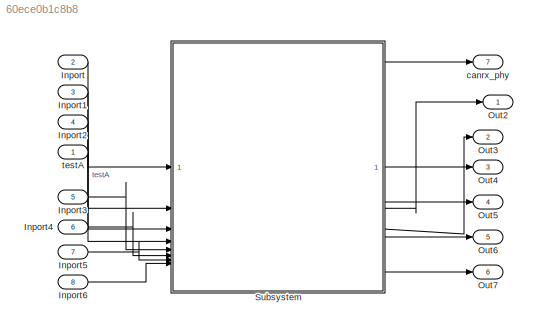
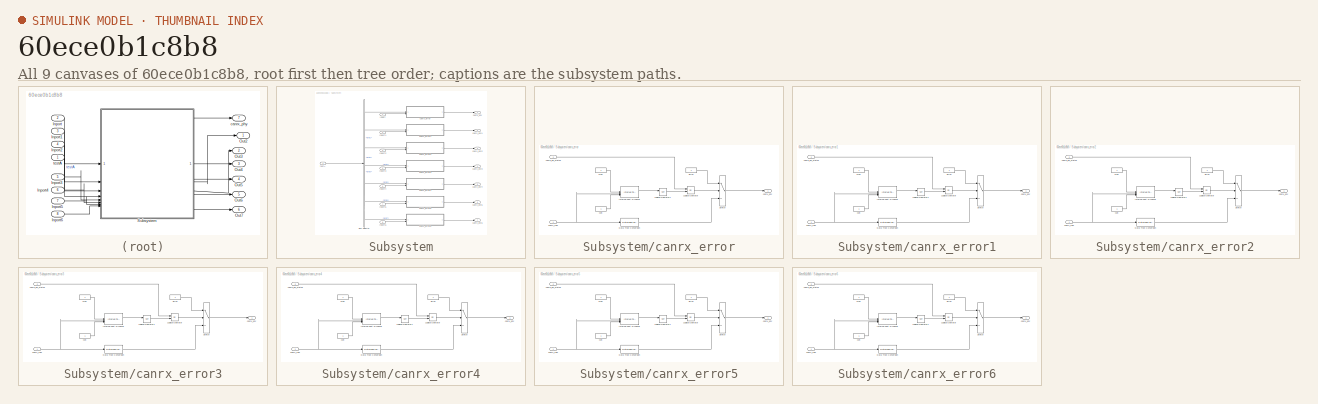
[diagram: thumbnail index - all 9 canvases of the model, root first then tree order]
MODEL slx_60ece0b1c8b8
KIND model
CONFIG AbsTol = auto
CONFIG EnableMultiTasking = off
CONFIG FixedStep = auto
CONFIG MaxStep = auto
CONFIG MinStep = auto
CONFIG RelTol = 1e-3
CONFIG SampleTimeConstraint = Unconstrained
CONFIG SolverName = FixedStepDiscrete
CONFIG StartTime = 0.0
CONFIG StopTime = 10.0
BLOCK [Inport] Inport
  Port = 2
BLOCK [Inport] Inport1
  Port = 3
BLOCK [Inport] Inport2
  Port = 4
BLOCK [Inport] Inport3
  Port = 5
BLOCK [Inport] Inport4
  Port = 6
BLOCK [Inport] Inport5
  Port = 7
BLOCK [Inport] Inport6
  Port = 8
BLOCK [Outport] Out2
  MustResolveToSignalObject = on
  SignalName = Out2
BLOCK [Outport] Out3
  MustResolveToSignalObject = on
  Port = 2
  SignalName = Out3
BLOCK [Outport] Out4
  MustResolveToSignalObject = on
  Port = 3
  SignalName = Out4
BLOCK [Outport] Out5
  MustResolveToSignalObject = on
  Port = 4
  SignalName = Out5
BLOCK [Outport] Out6
  MustResolveToSignalObject = on
  Port = 5
  SignalName = Out6
BLOCK [Outport] Out7
  MustResolveToSignalObject = on
  Port = 6
  SignalName = Out7
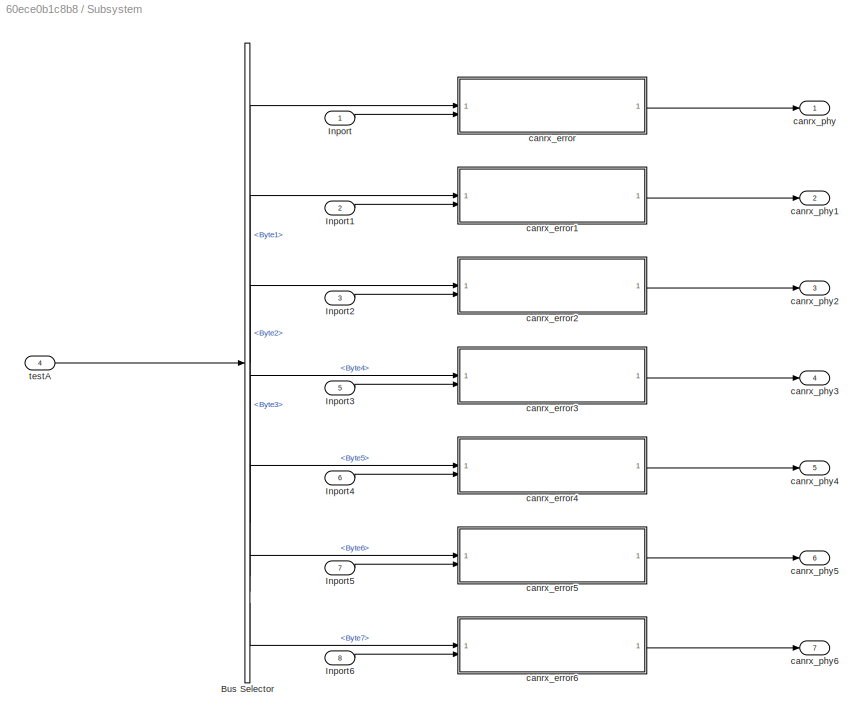
BLOCK [SubSystem] Subsystem
BLOCK [BusSelector] Subsystem/Bus Selector
  OutputSignals = Byte1,Byte2,Byte3,Byte4,Byte5,Byte6,Byte7
BLOCK [Inport] Subsystem/Inport
BLOCK [Inport] Subsystem/Inport1
  Port = 2
BLOCK [Inport] Subsystem/Inport2
  Port = 3
BLOCK [Inport] Subsystem/Inport3
  Port = 5
BLOCK [Inport] Subsystem/Inport4
  Port = 6
BLOCK [Inport] Subsystem/Inport5
  Port = 7
BLOCK [Inport] Subsystem/Inport6
  Port = 8
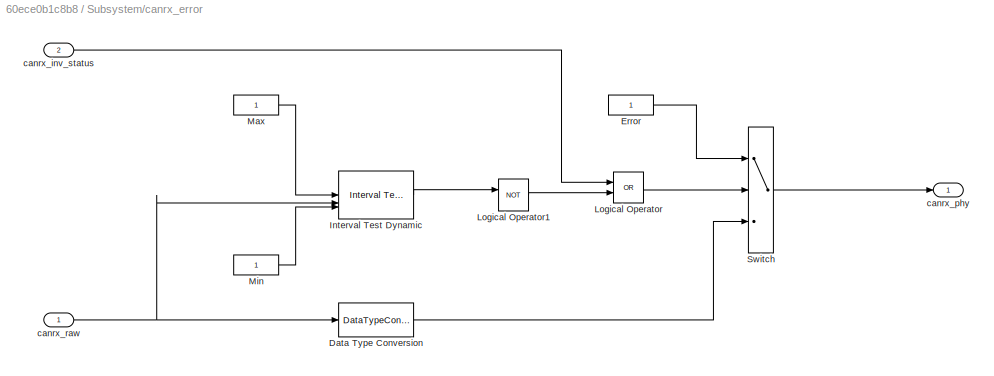
BLOCK [SubSystem] Subsystem/canrx_error
  RTWSystemCode = Reusable function
  TreatAsAtomicUnit = on
BLOCK [DataTypeConversion] Subsystem/canrx_error/Data Type Conversion
  RndMeth = Floor
  SaturateOnIntegerOverflow = off
BLOCK [Constant] Subsystem/canrx_error/Error
  OutDataTypeStr = Inherit: Inherit via back propagation
BLOCK [Reference] Subsystem/canrx_error/Interval Test Dynamic  REF=simulink/Logic and Bit
Operations/Interval Test
Dynamic
  SourceBlock = simulink/Logic and Bit\nOperations/Interval Test\nDynamic
  SourceType = Interval Test Dynamic
BLOCK [Logic] Subsystem/canrx_error/Logical Operator
  AllPortsSameDT = off
  Operator = OR
  OutDataTypeStr = boolean
BLOCK [Logic] Subsystem/canrx_error/Logical Operator1
  AllPortsSameDT = off
  Operator = NOT
  OutDataTypeStr = boolean
BLOCK [Constant] Subsystem/canrx_error/Max
  OutDataTypeStr = Inherit: Inherit via back propagation
BLOCK [Constant] Subsystem/canrx_error/Min
  OutDataTypeStr = Inherit: Inherit via back propagation
BLOCK [Switch] Subsystem/canrx_error/Switch
  Criteria = u2 > Threshold
  InputSameDT = off
  SaturateOnIntegerOverflow = off
BLOCK [Inport] Subsystem/canrx_error/canrx_inv_status
  Port = 2
BLOCK [Outport] Subsystem/canrx_error/canrx_phy
BLOCK [Inport] Subsystem/canrx_error/canrx_raw
BLOCK [SubSystem] Subsystem/canrx_error1
  RTWSystemCode = Reusable function
  TreatAsAtomicUnit = on
BLOCK [DataTypeConversion] Subsystem/canrx_error1/Data Type Conversion
  RndMeth = Floor
  SaturateOnIntegerOverflow = off
BLOCK [Constant] Subsystem/canrx_error1/Error
  OutDataTypeStr = Inherit: Inherit via back propagation
BLOCK [Reference] Subsystem/canrx_error1/Interval Test Dynamic  REF=simulink/Logic and Bit
Operations/Interval Test
Dynamic
  SourceBlock = simulink/Logic and Bit\nOperations/Interval Test\nDynamic
  SourceType = Interval Test Dynamic
BLOCK [Logic] Subsystem/canrx_error1/Logical Operator
  AllPortsSameDT = off
  Operator = OR
  OutDataTypeStr = boolean
BLOCK [Logic] Subsystem/canrx_error1/Logical Operator1
  AllPortsSameDT = off
  Operator = NOT
  OutDataTypeStr = boolean
BLOCK [Constant] Subsystem/canrx_error1/Max
  OutDataTypeStr = Inherit: Inherit via back propagation
BLOCK [Constant] Subsystem/canrx_error1/Min
  OutDataTypeStr = Inherit: Inherit via back propagation
BLOCK [Switch] Subsystem/canrx_error1/Switch
  Criteria = u2 > Threshold
  InputSameDT = off
  SaturateOnIntegerOverflow = off
BLOCK [Inport] Subsystem/canrx_error1/canrx_inv_status
  Port = 2
BLOCK [Outport] Subsystem/canrx_error1/canrx_phy
BLOCK [Inport] Subsystem/canrx_error1/canrx_raw
BLOCK [SubSystem] Subsystem/canrx_error2
  RTWSystemCode = Reusable function
  TreatAsAtomicUnit = on
BLOCK [DataTypeConversion] Subsystem/canrx_error2/Data Type Conversion
  RndMeth = Floor
  SaturateOnIntegerOverflow = off
BLOCK [Constant] Subsystem/canrx_error2/Error
  OutDataTypeStr = Inherit: Inherit via back propagation
BLOCK [Reference] Subsystem/canrx_error2/Interval Test Dynamic  REF=simulink/Logic and Bit
Operations/Interval Test
Dynamic
  SourceBlock = simulink/Logic and Bit\nOperations/Interval Test\nDynamic
  SourceType = Interval Test Dynamic
BLOCK [Logic] Subsystem/canrx_error2/Logical Operator
  AllPortsSameDT = off
  Operator = OR
  OutDataTypeStr = boolean
BLOCK [Logic] Subsystem/canrx_error2/Logical Operator1
  AllPortsSameDT = off
  Operator = NOT
  OutDataTypeStr = boolean
BLOCK [Constant] Subsystem/canrx_error2/Max
  OutDataTypeStr = Inherit: Inherit via back propagation
BLOCK [Constant] Subsystem/canrx_error2/Min
  OutDataTypeStr = Inherit: Inherit via back propagation
BLOCK [Switch] Subsystem/canrx_error2/Switch
  Criteria = u2 > Threshold
  InputSameDT = off
  SaturateOnIntegerOverflow = off
BLOCK [Inport] Subsystem/canrx_error2/canrx_inv_status
  Port = 2
BLOCK [Outport] Subsystem/canrx_error2/canrx_phy
BLOCK [Inport] Subsystem/canrx_error2/canrx_raw
BLOCK [SubSystem] Subsystem/canrx_error3
  RTWSystemCode = Reusable function
  TreatAsAtomicUnit = on
BLOCK [DataTypeConversion] Subsystem/canrx_error3/Data Type Conversion
  RndMeth = Floor
  SaturateOnIntegerOverflow = off
BLOCK [Constant] Subsystem/canrx_error3/Error
  OutDataTypeStr = Inherit: Inherit via back propagation
BLOCK [Reference] Subsystem/canrx_error3/Interval Test Dynamic  REF=simulink/Logic and Bit
Operations/Interval Test
Dynamic
  SourceBlock = simulink/Logic and Bit\nOperations/Interval Test\nDynamic
  SourceType = Interval Test Dynamic
BLOCK [Logic] Subsystem/canrx_error3/Logical Operator
  AllPortsSameDT = off
  Operator = OR
  OutDataTypeStr = boolean
BLOCK [Logic] Subsystem/canrx_error3/Logical Operator1
  AllPortsSameDT = off
  Operator = NOT
  OutDataTypeStr = boolean
BLOCK [Constant] Subsystem/canrx_error3/Max
  OutDataTypeStr = Inherit: Inherit via back propagation
BLOCK [Constant] Subsystem/canrx_error3/Min
  OutDataTypeStr = Inherit: Inherit via back propagation
BLOCK [Switch] Subsystem/canrx_error3/Switch
  Criteria = u2 > Threshold
  InputSameDT = off
  SaturateOnIntegerOverflow = off
BLOCK [Inport] Subsystem/canrx_error3/canrx_inv_status
  Port = 2
BLOCK [Outport] Subsystem/canrx_error3/canrx_phy
BLOCK [Inport] Subsystem/canrx_error3/canrx_raw
BLOCK [SubSystem] Subsystem/canrx_error4
  RTWSystemCode = Reusable function
  TreatAsAtomicUnit = on
BLOCK [DataTypeConversion] Subsystem/canrx_error4/Data Type Conversion
  RndMeth = Floor
  SaturateOnIntegerOverflow = off
BLOCK [Constant] Subsystem/canrx_error4/Error
  OutDataTypeStr = Inherit: Inherit via back propagation
BLOCK [Reference] Subsystem/canrx_error4/Interval Test Dynamic  REF=simulink/Logic and Bit
Operations/Interval Test
Dynamic
  SourceBlock = simulink/Logic and Bit\nOperations/Interval Test\nDynamic
  SourceType = Interval Test Dynamic
BLOCK [Logic] Subsystem/canrx_error4/Logical Operator
  AllPortsSameDT = off
  Operator = OR
  OutDataTypeStr = boolean
BLOCK [Logic] Subsystem/canrx_error4/Logical Operator1
  AllPortsSameDT = off
  Operator = NOT
  OutDataTypeStr = boolean
BLOCK [Constant] Subsystem/canrx_error4/Max
  OutDataTypeStr = Inherit: Inherit via back propagation
BLOCK [Constant] Subsystem/canrx_error4/Min
  OutDataTypeStr = Inherit: Inherit via back propagation
BLOCK [Switch] Subsystem/canrx_error4/Switch
  Criteria = u2 > Threshold
  InputSameDT = off
  SaturateOnIntegerOverflow = off
BLOCK [Inport] Subsystem/canrx_error4/canrx_inv_status
  Port = 2
BLOCK [Outport] Subsystem/canrx_error4/canrx_phy
BLOCK [Inport] Subsystem/canrx_error4/canrx_raw
BLOCK [SubSystem] Subsystem/canrx_error5
  RTWSystemCode = Reusable function
  TreatAsAtomicUnit = on
BLOCK [DataTypeConversion] Subsystem/canrx_error5/Data Type Conversion
  RndMeth = Floor
  SaturateOnIntegerOverflow = off
BLOCK [Constant] Subsystem/canrx_error5/Error
  OutDataTypeStr = Inherit: Inherit via back propagation
BLOCK [Reference] Subsystem/canrx_error5/Interval Test Dynamic  REF=simulink/Logic and Bit
Operations/Interval Test
Dynamic
  SourceBlock = simulink/Logic and Bit\nOperations/Interval Test\nDynamic
  SourceType = Interval Test Dynamic
BLOCK [Logic] Subsystem/canrx_error5/Logical Operator
  AllPortsSameDT = off
  Operator = OR
  OutDataTypeStr = boolean
BLOCK [Logic] Subsystem/canrx_error5/Logical Operator1
  AllPortsSameDT = off
  Operator = NOT
  OutDataTypeStr = boolean
BLOCK [Constant] Subsystem/canrx_error5/Max
  OutDataTypeStr = Inherit: Inherit via back propagation
BLOCK [Constant] Subsystem/canrx_error5/Min
  OutDataTypeStr = Inherit: Inherit via back propagation
BLOCK [Switch] Subsystem/canrx_error5/Switch
  Criteria = u2 > Threshold
  InputSameDT = off
  SaturateOnIntegerOverflow = off
BLOCK [Inport] Subsystem/canrx_error5/canrx_inv_status
  Port = 2
BLOCK [Outport] Subsystem/canrx_error5/canrx_phy
BLOCK [Inport] Subsystem/canrx_error5/canrx_raw
BLOCK [SubSystem] Subsystem/canrx_error6
  RTWSystemCode = Reusable function
  TreatAsAtomicUnit = on
BLOCK [DataTypeConversion] Subsystem/canrx_error6/Data Type Conversion
  RndMeth = Floor
  SaturateOnIntegerOverflow = off
BLOCK [Constant] Subsystem/canrx_error6/Error
  OutDataTypeStr = Inherit: Inherit via back propagation
BLOCK [Reference] Subsystem/canrx_error6/Interval Test Dynamic  REF=simulink/Logic and Bit
Operations/Interval Test
Dynamic
  SourceBlock = simulink/Logic and Bit\nOperations/Interval Test\nDynamic
  SourceType = Interval Test Dynamic
BLOCK [Logic] Subsystem/canrx_error6/Logical Operator
  AllPortsSameDT = off
  Operator = OR
  OutDataTypeStr = boolean
BLOCK [Logic] Subsystem/canrx_error6/Logical Operator1
  AllPortsSameDT = off
  Operator = NOT
  OutDataTypeStr = boolean
BLOCK [Constant] Subsystem/canrx_error6/Max
  OutDataTypeStr = Inherit: Inherit via back propagation
BLOCK [Constant] Subsystem/canrx_error6/Min
  OutDataTypeStr = Inherit: Inherit via back propagation
BLOCK [Switch] Subsystem/canrx_error6/Switch
  Criteria = u2 > Threshold
  InputSameDT = off
  SaturateOnIntegerOverflow = off
BLOCK [Inport] Subsystem/canrx_error6/canrx_inv_status
  Port = 2
BLOCK [Outport] Subsystem/canrx_error6/canrx_phy
BLOCK [Inport] Subsystem/canrx_error6/canrx_raw
BLOCK [Outport] Subsystem/canrx_phy
BLOCK [Outport] Subsystem/canrx_phy1
  Port = 2
BLOCK [Outport] Subsystem/canrx_phy2
  Port = 3
BLOCK [Outport] Subsystem/canrx_phy3
  Port = 4
BLOCK [Outport] Subsystem/canrx_phy4
  Port = 5
BLOCK [Outport] Subsystem/canrx_phy5
  Port = 6
BLOCK [Outport] Subsystem/canrx_phy6
  Port = 7
BLOCK [Inport] Subsystem/testA
  Port = 4
BLOCK [Outport] canrx_phy
  MustResolveToSignalObject = on
  Port = 7
  SignalName = Out1
BLOCK [Inport] testA
  OutDataTypeStr = Bus: test
LINE Inport1:1 -> Subsystem:2
LINE Inport2:1 -> Subsystem:3
LINE Inport3:1 -> Subsystem:5
LINE Inport4:1 -> Subsystem:6
LINE Inport5:1 -> Subsystem:7
LINE Inport6:1 -> Subsystem:8
LINE Inport:1 -> Subsystem:1
LINE Subsystem/Bus Selector:1 -> Subsystem/canrx_error:1
LINE Subsystem/Bus Selector:2 -> Subsystem/canrx_error1:1
LINE Subsystem/Bus Selector:3 -> Subsystem/canrx_error2:1
LINE Subsystem/Bus Selector:4 -> Subsystem/canrx_error3:1
LINE Subsystem/Bus Selector:5 -> Subsystem/canrx_error4:1
LINE Subsystem/Bus Selector:6 -> Subsystem/canrx_error5:1
LINE Subsystem/Bus Selector:7 -> Subsystem/canrx_error6:1
LINE Subsystem/Inport1:1 -> Subsystem/canrx_error1:2
LINE Subsystem/Inport2:1 -> Subsystem/canrx_error2:2
LINE Subsystem/Inport3:1 -> Subsystem/canrx_error3:2
LINE Subsystem/Inport4:1 -> Subsystem/canrx_error4:2
LINE Subsystem/Inport5:1 -> Subsystem/canrx_error5:2
LINE Subsystem/Inport6:1 -> Subsystem/canrx_error6:2
LINE Subsystem/Inport:1 -> Subsystem/canrx_error:2
LINE Subsystem/canrx_error/Data Type Conversion:1 -> Subsystem/canrx_error/Switch:3
LINE Subsystem/canrx_error/Error:1 -> Subsystem/canrx_error/Switch:1
LINE Subsystem/canrx_error/Interval Test Dynamic:1 -> Subsystem/canrx_error/Logical Operator1:1
LINE Subsystem/canrx_error/Logical Operator1:1 -> Subsystem/canrx_error/Logical Operator:2
LINE Subsystem/canrx_error/Logical Operator:1 -> Subsystem/canrx_error/Switch:2
LINE Subsystem/canrx_error/Max:1 -> Subsystem/canrx_error/Interval Test Dynamic:1
LINE Subsystem/canrx_error/Min:1 -> Subsystem/canrx_error/Interval Test Dynamic:3
LINE Subsystem/canrx_error/Switch:1 -> Subsystem/canrx_error/canrx_phy:1
LINE Subsystem/canrx_error/canrx_inv_status:1 -> Subsystem/canrx_error/Logical Operator:1
NET Subsystem/canrx_error/canrx_raw:1 -> Subsystem/canrx_error/Data Type Conversion:1, Subsystem/canrx_error/Interval Test Dynamic:2
LINE Subsystem/canrx_error1/Data Type Conversion:1 -> Subsystem/canrx_error1/Switch:3
LINE Subsystem/canrx_error1/Error:1 -> Subsystem/canrx_error1/Switch:1
LINE Subsystem/canrx_error1/Interval Test Dynamic:1 -> Subsystem/canrx_error1/Logical Operator1:1
LINE Subsystem/canrx_error1/Logical Operator1:1 -> Subsystem/canrx_error1/Logical Operator:2
LINE Subsystem/canrx_error1/Logical Operator:1 -> Subsystem/canrx_error1/Switch:2
LINE Subsystem/canrx_error1/Max:1 -> Subsystem/canrx_error1/Interval Test Dynamic:1
LINE Subsystem/canrx_error1/Min:1 -> Subsystem/canrx_error1/Interval Test Dynamic:3
LINE Subsystem/canrx_error1/Switch:1 -> Subsystem/canrx_error1/canrx_phy:1
LINE Subsystem/canrx_error1/canrx_inv_status:1 -> Subsystem/canrx_error1/Logical Operator:1
NET Subsystem/canrx_error1/canrx_raw:1 -> Subsystem/canrx_error1/Data Type Conversion:1, Subsystem/canrx_error1/Interval Test Dynamic:2
LINE Subsystem/canrx_error1:1 -> Subsystem/canrx_phy1:1
LINE Subsystem/canrx_error2/Data Type Conversion:1 -> Subsystem/canrx_error2/Switch:3
LINE Subsystem/canrx_error2/Error:1 -> Subsystem/canrx_error2/Switch:1
LINE Subsystem/canrx_error2/Interval Test Dynamic:1 -> Subsystem/canrx_error2/Logical Operator1:1
LINE Subsystem/canrx_error2/Logical Operator1:1 -> Subsystem/canrx_error2/Logical Operator:2
LINE Subsystem/canrx_error2/Logical Operator:1 -> Subsystem/canrx_error2/Switch:2
LINE Subsystem/canrx_error2/Max:1 -> Subsystem/canrx_error2/Interval Test Dynamic:1
LINE Subsystem/canrx_error2/Min:1 -> Subsystem/canrx_error2/Interval Test Dynamic:3
LINE Subsystem/canrx_error2/Switch:1 -> Subsystem/canrx_error2/canrx_phy:1
LINE Subsystem/canrx_error2/canrx_inv_status:1 -> Subsystem/canrx_error2/Logical Operator:1
NET Subsystem/canrx_error2/canrx_raw:1 -> Subsystem/canrx_error2/Data Type Conversion:1, Subsystem/canrx_error2/Interval Test Dynamic:2
LINE Subsystem/canrx_error2:1 -> Subsystem/canrx_phy2:1
LINE Subsystem/canrx_error3/Data Type Conversion:1 -> Subsystem/canrx_error3/Switch:3
LINE Subsystem/canrx_error3/Error:1 -> Subsystem/canrx_error3/Switch:1
LINE Subsystem/canrx_error3/Interval Test Dynamic:1 -> Subsystem/canrx_error3/Logical Operator1:1
LINE Subsystem/canrx_error3/Logical Operator1:1 -> Subsystem/canrx_error3/Logical Operator:2
LINE Subsystem/canrx_error3/Logical Operator:1 -> Subsystem/canrx_error3/Switch:2
LINE Subsystem/canrx_error3/Max:1 -> Subsystem/canrx_error3/Interval Test Dynamic:1
LINE Subsystem/canrx_error3/Min:1 -> Subsystem/canrx_error3/Interval Test Dynamic:3
LINE Subsystem/canrx_error3/Switch:1 -> Subsystem/canrx_error3/canrx_phy:1
LINE Subsystem/canrx_error3/canrx_inv_status:1 -> Subsystem/canrx_error3/Logical Operator:1
NET Subsystem/canrx_error3/canrx_raw:1 -> Subsystem/canrx_error3/Data Type Conversion:1, Subsystem/canrx_error3/Interval Test Dynamic:2
LINE Subsystem/canrx_error3:1 -> Subsystem/canrx_phy3:1
LINE Subsystem/canrx_error4/Data Type Conversion:1 -> Subsystem/canrx_error4/Switch:3
LINE Subsystem/canrx_error4/Error:1 -> Subsystem/canrx_error4/Switch:1
LINE Subsystem/canrx_error4/Interval Test Dynamic:1 -> Subsystem/canrx_error4/Logical Operator1:1
LINE Subsystem/canrx_error4/Logical Operator1:1 -> Subsystem/canrx_error4/Logical Operator:2
LINE Subsystem/canrx_error4/Logical Operator:1 -> Subsystem/canrx_error4/Switch:2
LINE Subsystem/canrx_error4/Max:1 -> Subsystem/canrx_error4/Interval Test Dynamic:1
LINE Subsystem/canrx_error4/Min:1 -> Subsystem/canrx_error4/Interval Test Dynamic:3
LINE Subsystem/canrx_error4/Switch:1 -> Subsystem/canrx_error4/canrx_phy:1
LINE Subsystem/canrx_error4/canrx_inv_status:1 -> Subsystem/canrx_error4/Logical Operator:1
NET Subsystem/canrx_error4/canrx_raw:1 -> Subsystem/canrx_error4/Data Type Conversion:1, Subsystem/canrx_error4/Interval Test Dynamic:2
LINE Subsystem/canrx_error4:1 -> Subsystem/canrx_phy4:1
LINE Subsystem/canrx_error5/Data Type Conversion:1 -> Subsystem/canrx_error5/Switch:3
LINE Subsystem/canrx_error5/Error:1 -> Subsystem/canrx_error5/Switch:1
LINE Subsystem/canrx_error5/Interval Test Dynamic:1 -> Subsystem/canrx_error5/Logical Operator1:1
LINE Subsystem/canrx_error5/Logical Operator1:1 -> Subsystem/canrx_error5/Logical Operator:2
LINE Subsystem/canrx_error5/Logical Operator:1 -> Subsystem/canrx_error5/Switch:2
LINE Subsystem/canrx_error5/Max:1 -> Subsystem/canrx_error5/Interval Test Dynamic:1
LINE Subsystem/canrx_error5/Min:1 -> Subsystem/canrx_error5/Interval Test Dynamic:3
LINE Subsystem/canrx_error5/Switch:1 -> Subsystem/canrx_error5/canrx_phy:1
LINE Subsystem/canrx_error5/canrx_inv_status:1 -> Subsystem/canrx_error5/Logical Operator:1
NET Subsystem/canrx_error5/canrx_raw:1 -> Subsystem/canrx_error5/Data Type Conversion:1, Subsystem/canrx_error5/Interval Test Dynamic:2
LINE Subsystem/canrx_error5:1 -> Subsystem/canrx_phy5:1
LINE Subsystem/canrx_error6/Data Type Conversion:1 -> Subsystem/canrx_error6/Switch:3
LINE Subsystem/canrx_error6/Error:1 -> Subsystem/canrx_error6/Switch:1
LINE Subsystem/canrx_error6/Interval Test Dynamic:1 -> Subsystem/canrx_error6/Logical Operator1:1
LINE Subsystem/canrx_error6/Logical Operator1:1 -> Subsystem/canrx_error6/Logical Operator:2
LINE Subsystem/canrx_error6/Logical Operator:1 -> Subsystem/canrx_error6/Switch:2
LINE Subsystem/canrx_error6/Max:1 -> Subsystem/canrx_error6/Interval Test Dynamic:1
LINE Subsystem/canrx_error6/Min:1 -> Subsystem/canrx_error6/Interval Test Dynamic:3
LINE Subsystem/canrx_error6/Switch:1 -> Subsystem/canrx_error6/canrx_phy:1
LINE Subsystem/canrx_error6/canrx_inv_status:1 -> Subsystem/canrx_error6/Logical Operator:1
NET Subsystem/canrx_error6/canrx_raw:1 -> Subsystem/canrx_error6/Data Type Conversion:1, Subsystem/canrx_error6/Interval Test Dynamic:2
LINE Subsystem/canrx_error6:1 -> Subsystem/canrx_phy6:1
LINE Subsystem/canrx_error:1 -> Subsystem/canrx_phy:1
LINE Subsystem/testA:1 -> Subsystem/Bus Selector:1
LINE Subsystem:1 -> canrx_phy:1
LINE Subsystem:2 -> Out2:1
LINE Subsystem:3 -> Out3:1
LINE Subsystem:4 -> Out4:1
LINE Subsystem:5 -> Out5:1
LINE Subsystem:6 -> Out6:1
LINE Subsystem:7 -> Out7:1
LINE testA:1 -> Subsystem:4
note: NET lines group one-source signal fan-out (src -> all destinations, sorted); 1:1 wires keep LINE
